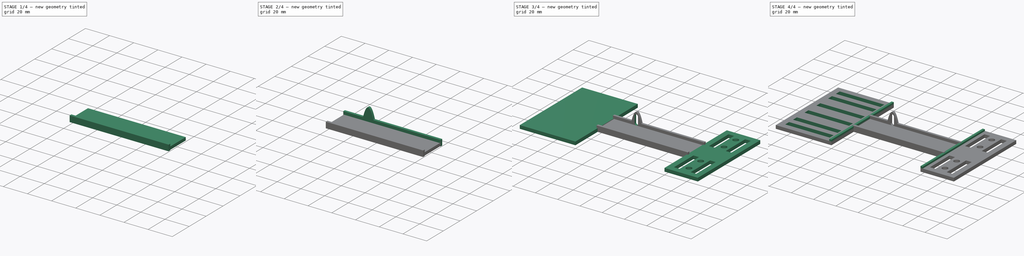
[diagram: build sequence overview — one tinted view per stage of 4, left to right]
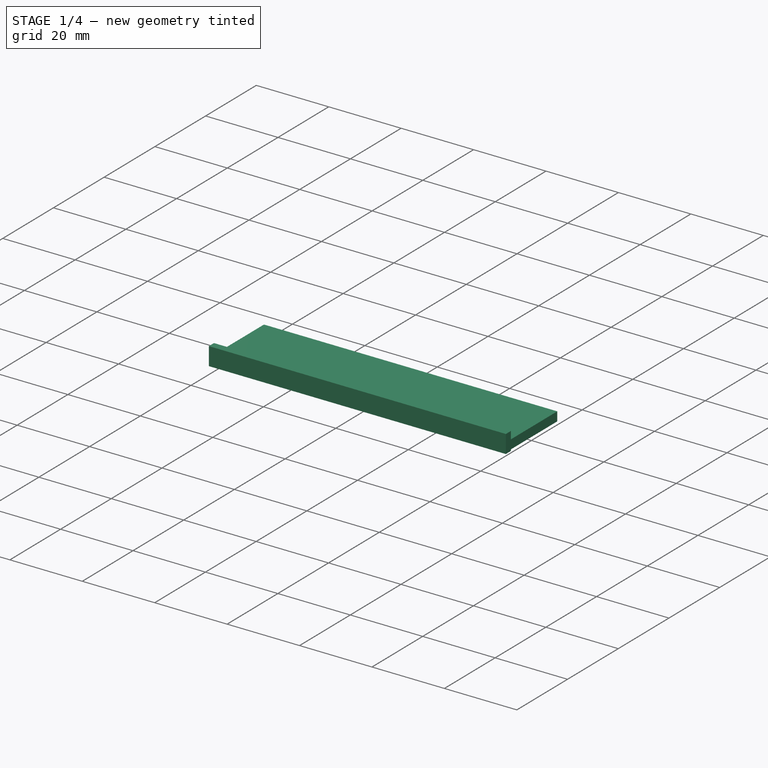
[diagram: stage 1 of 4 — iso view after this stage's code; geometry added in this stage tinted green]
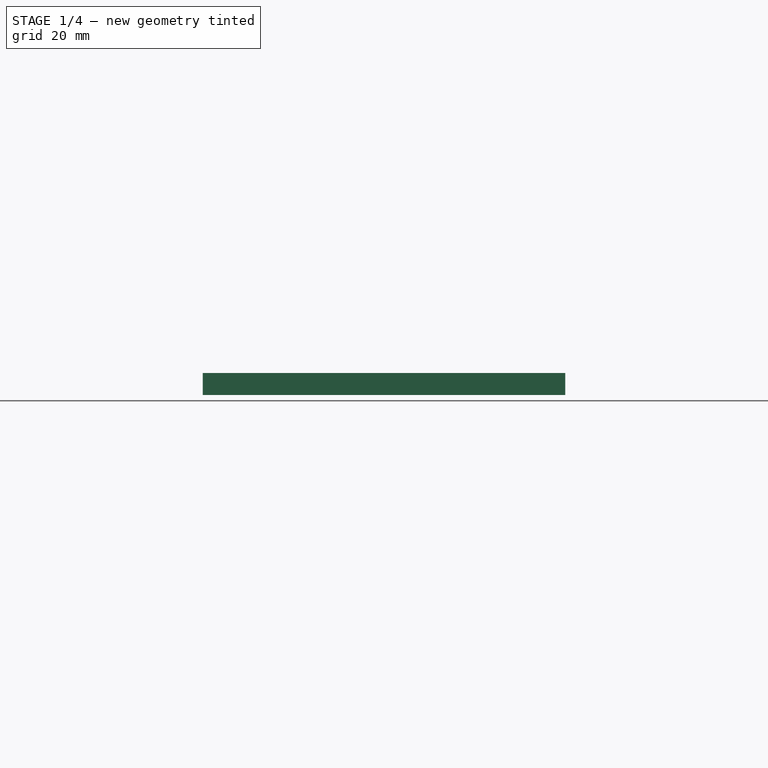
[diagram: stage 1 of 4 — front view after this stage's code; geometry added in this stage tinted green]
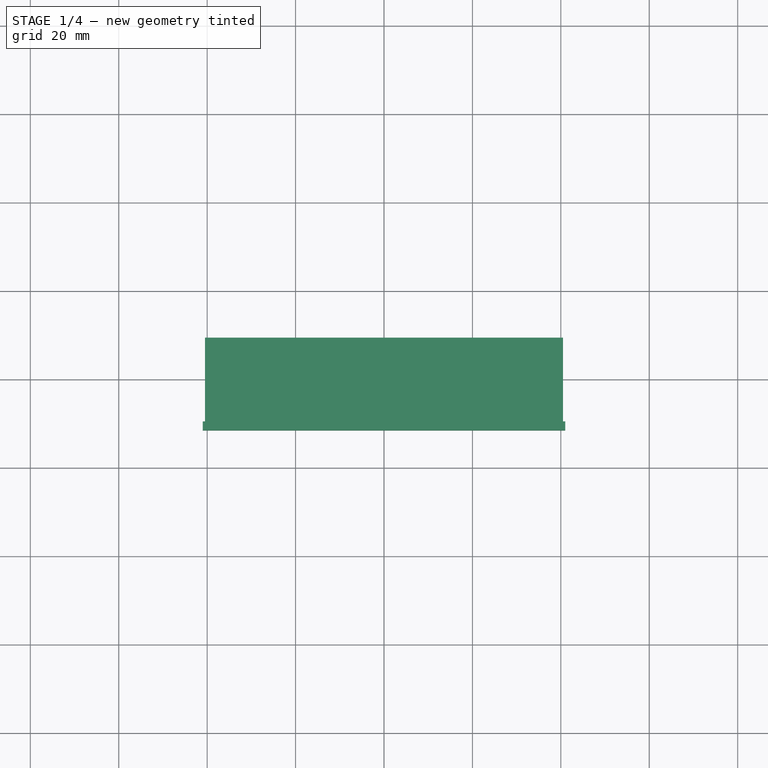
[diagram: stage 1 of 4 — top view after this stage's code; geometry added in this stage tinted green]
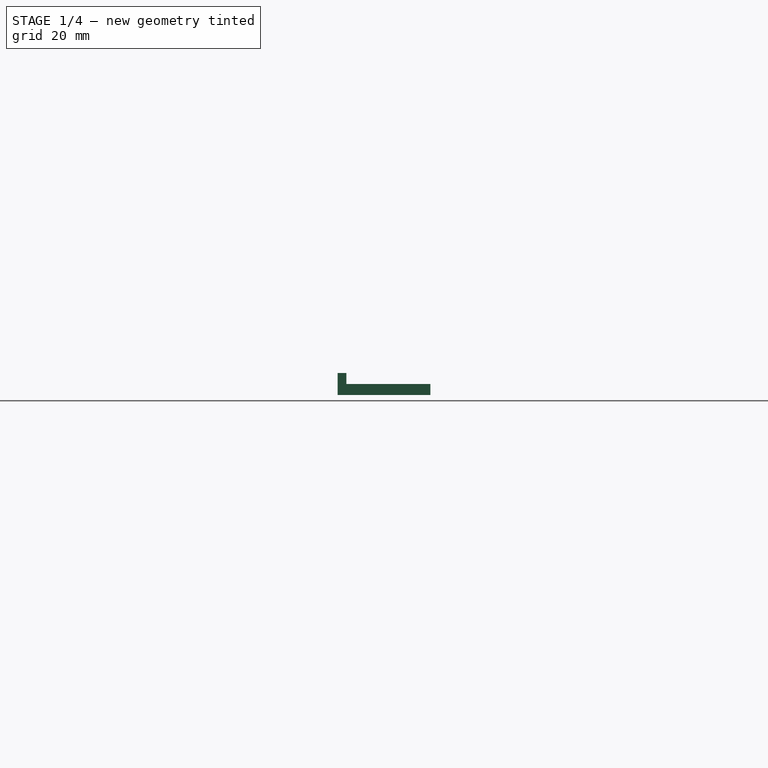
[diagram: stage 1 of 4 — right view after this stage's code; geometry added in this stage tinted green]
FCSTD DOCUMENT  (FreeCAD 0.19RUnknown)
Label: bar-car-rect
License: All rights reserved
LicenseURL: http://en.wikipedia.org/wiki/All_rights_reserved
objects: Sketcher::SketchObject×9, PartDesign::Pad×6, PartDesign::Pocket×3, PartDesign::Body×1
note: 28 computed .brp shape members not serialized (recipe doc carries the construction recipe); baked Part::Feature solids carry a one-line shape summary decoded from their .brp

FEATURE [Sketcher::SketchObject] Sketch
  FullyConstrained = false
  MapMode = 5
  Support = -> [XY_Plane]
  sketch-geometry (4):
    g0: LineSegment StartX=-40.5 StartY=9.5 StartZ=0 EndX=40.5 EndY=9.5 EndZ=0
    g1: LineSegment StartX=40.5 StartY=9.5 StartZ=0 EndX=40.5 EndY=-9.5 EndZ=0
    g2: LineSegment StartX=40.5 StartY=-9.5 StartZ=0 EndX=-40.5 EndY=-9.5 EndZ=0
    g3: LineSegment StartX=-40.5 StartY=-9.5 StartZ=0 EndX=-40.5 EndY=9.5 EndZ=0
  constraints (8):
    c: Coincident(g0,g1)
    c: Coincident(g1,g2)
    c: Coincident(g2,g3)
    c: Coincident(g3,g0)
    c: Horizontal(g0)
    c: Horizontal(g2)
    c: Vertical(g1)
    c: Vertical(g3)
FEATURE [PartDesign::Pad] Pad
  Direction = (1,1,1)
  Length = 2.5
  Length2 = 100
  Profile = -> Sketch
  Type = 0
FEATURE [Sketcher::SketchObject] Sketch001
  FullyConstrained = false
  MapMode = 5
  Placement = pos=(0,-9.5,0) rot=(1,0,0;1.5708rad)
  Support = -> [Pad]
  sketch-geometry (4):
    g0: LineSegment StartX=-41 StartY=5 StartZ=0 EndX=41 EndY=5 EndZ=0
    g1: LineSegment StartX=41 StartY=5 StartZ=0 EndX=41 EndY=0 EndZ=0
    g2: LineSegment StartX=41 StartY=0 StartZ=0 EndX=-41 EndY=0 EndZ=0
    g3: LineSegment StartX=-41 StartY=0 StartZ=0 EndX=-41 EndY=5 EndZ=0
  constraints (9):
    c: Coincident(g0,g1)
    c: Coincident(g1,g2)
    c: Coincident(g2,g3)
    c: Coincident(g3,g0)
    c: Horizontal(g0)
    c: Horizontal(g2)
    c: Vertical(g1)
    c: Vertical(g3)
    c: PointOnObject(g1,g-1)
FEATURE [PartDesign::Pad] Pad001
  BaseFeature = -> Pad
  Direction = (1,1,1)
  Length = 2
  Length2 = 100
  Profile = -> Sketch001
  Type = 0
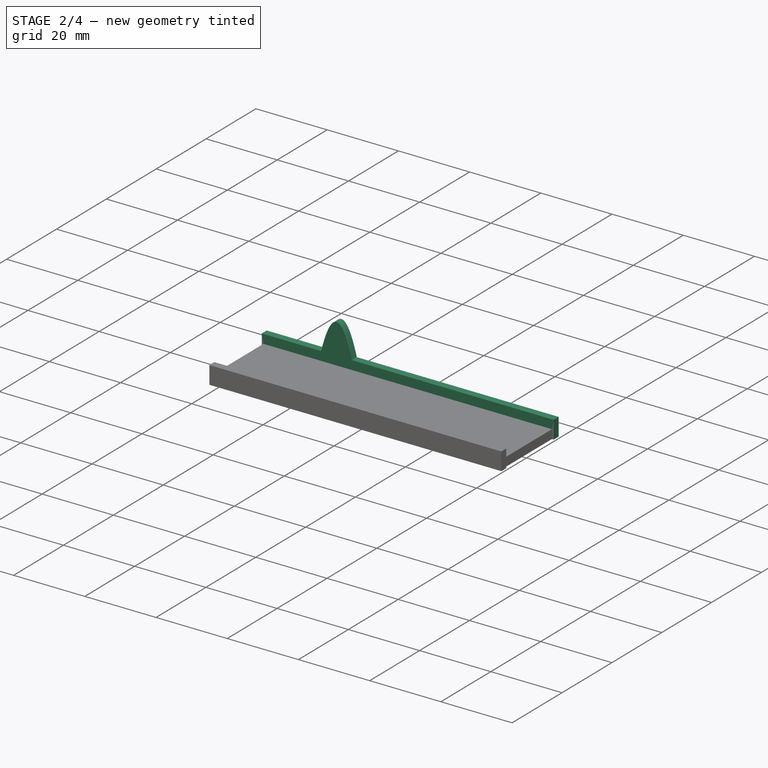
[diagram: stage 2 of 4 — iso view after this stage's code; geometry added in this stage tinted green]
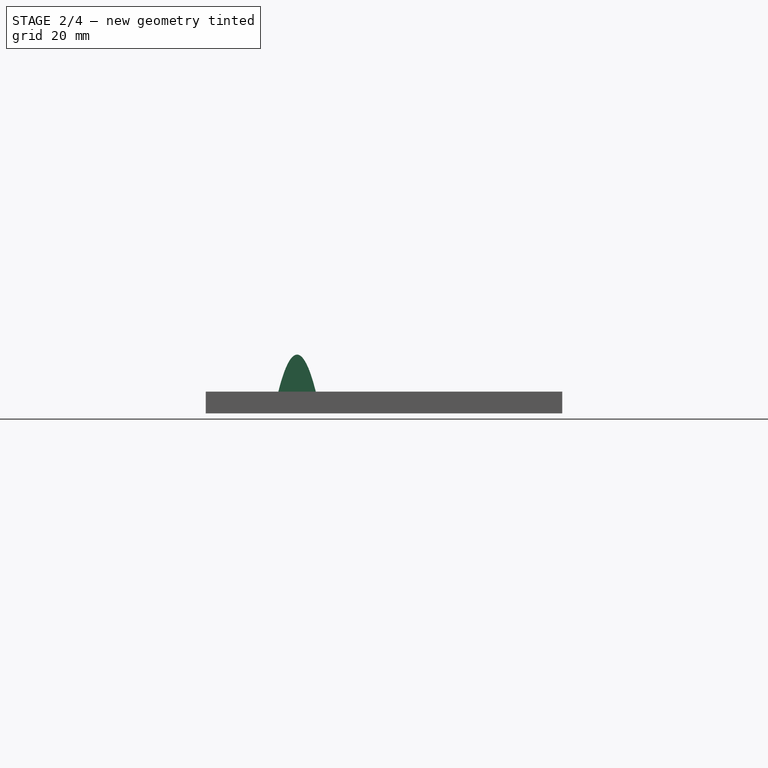
[diagram: stage 2 of 4 — front view after this stage's code; geometry added in this stage tinted green]
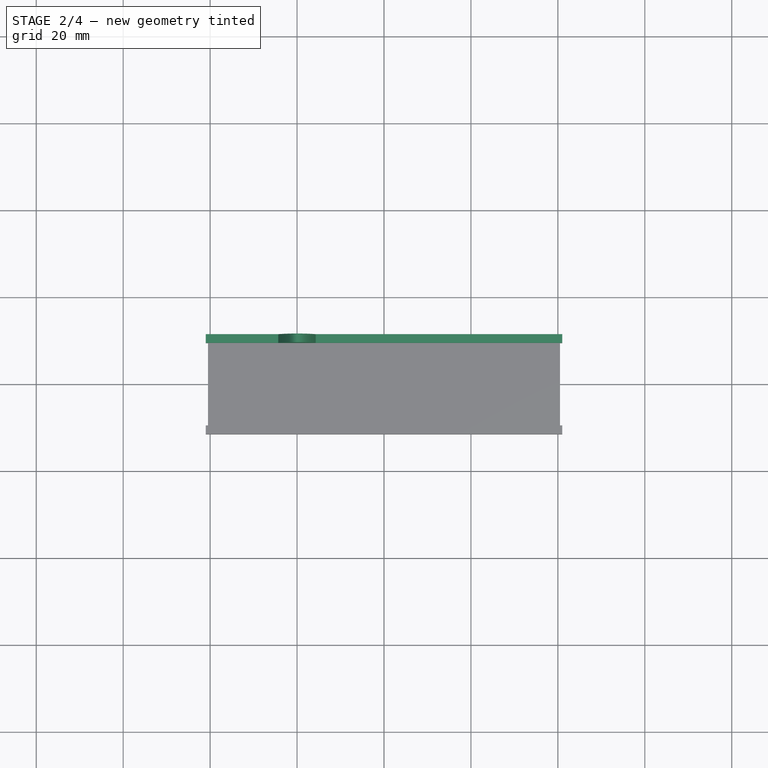
[diagram: stage 2 of 4 — top view after this stage's code; geometry added in this stage tinted green]
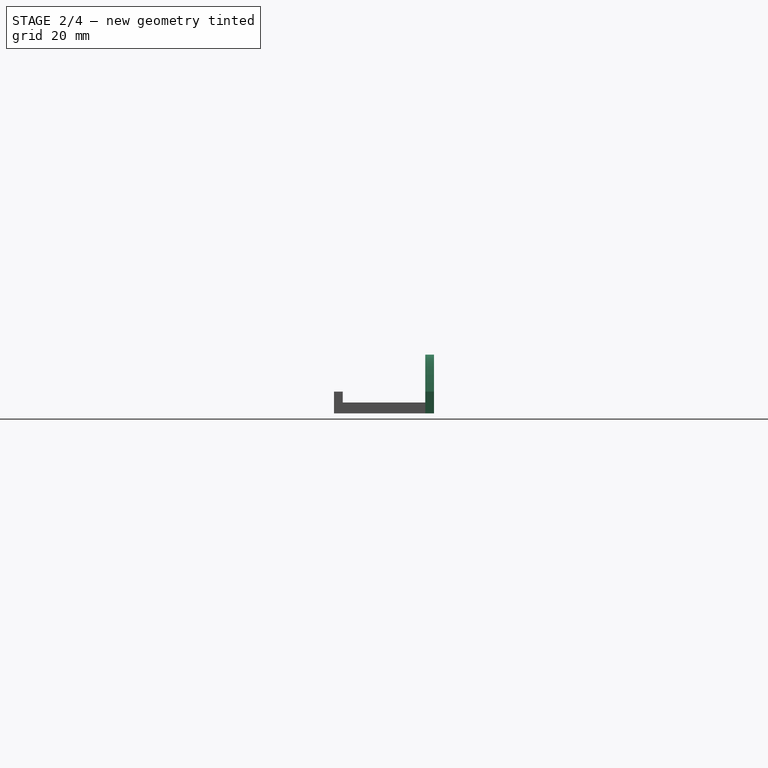
[diagram: stage 2 of 4 — right view after this stage's code; geometry added in this stage tinted green]
FEATURE [Sketcher::SketchObject] Sketch002
  FullyConstrained = false
  MapMode = 5
  Placement = pos=(0,9.5,0) rot=(0,0.707107,0.707107;3.14159rad)
  Support = -> [Pad001]
  sketch-geometry (4):
    g0: LineSegment StartX=41 StartY=0 StartZ=0 EndX=-41 EndY=0 EndZ=0
    g1: LineSegment StartX=-41 StartY=0 StartZ=0 EndX=-41 EndY=5 EndZ=0
    g2: LineSegment StartX=-41 StartY=5 StartZ=0 EndX=41 EndY=5 EndZ=0
    g3: LineSegment StartX=41 StartY=5 StartZ=0 EndX=41 EndY=0 EndZ=0
  constraints (9):
    c: Coincident(g0,g1)
    c: Coincident(g1,g2)
    c: Coincident(g2,g3)
    c: Coincident(g3,g0)
    c: Horizontal(g0)
    c: Horizontal(g2)
    c: Vertical(g1)
    c: Vertical(g3)
    c: PointOnObject(g0,g-1)
FEATURE [PartDesign::Pad] Pad002
  BaseFeature = -> Pad001
  Direction = (1,1,1)
  Length = 2
  Length2 = 100
  Profile = -> Sketch002
  Type = 0
FEATURE [Sketcher::SketchObject] Sketch003
  FullyConstrained = false
  MapMode = 5
  Placement = pos=(0,11.5,-4.1e-15) rot=(0,0.707107,0.707107;3.14159rad)
  Support = -> [Pad002]
  sketch-geometry (7):
    g0: Circle CenterX=15 CenterY=2.06384 CenterZ=0 NormalX=0 NormalY=0 NormalZ=1 AngleXU=0 Radius=1
    g1: Circle CenterX=20 CenterY=25 CenterZ=0 NormalX=0 NormalY=0 NormalZ=1 AngleXU=0 Radius=1
    g2: Circle CenterX=25 CenterY=2.06384 CenterZ=0 NormalX=0 NormalY=0 NormalZ=1 AngleXU=0 Radius=1
    g3: BSplineCurve PolesCount=3 KnotsCount=2 Degree=2 IsPeriodic=0
    g4: GeomPoint X=15 Y=2.06384 Z=0
    g5: GeomPoint X=25 Y=2.06384 Z=0
    g6: LineSegment StartX=15 StartY=2.06384 StartZ=0 EndX=25 EndY=2.06384 EndZ=0
  constraints (11):
    c: Weight(g0) = 1
    c: Equal(g0,g1)
    c: Equal(g0,g2)
    c: InternalAlignment(g0,g3)
    c: InternalAlignment(g1,g3)
    c: InternalAlignment(g2,g3)
    c: InternalAlignment(g4,g3)
    c: InternalAlignment(g5,g3)
    c: Coincident(g6,g3)
    c: Coincident(g6,g3)
    c: Horizontal(g6)
FEATURE [PartDesign::Pad] Pad003
  BaseFeature = -> Pad002
  Direction = (1,1,1)
  Length = 2
  Length2 = 100
  Profile = -> Sketch003
  Reversed = true
  Type = 0
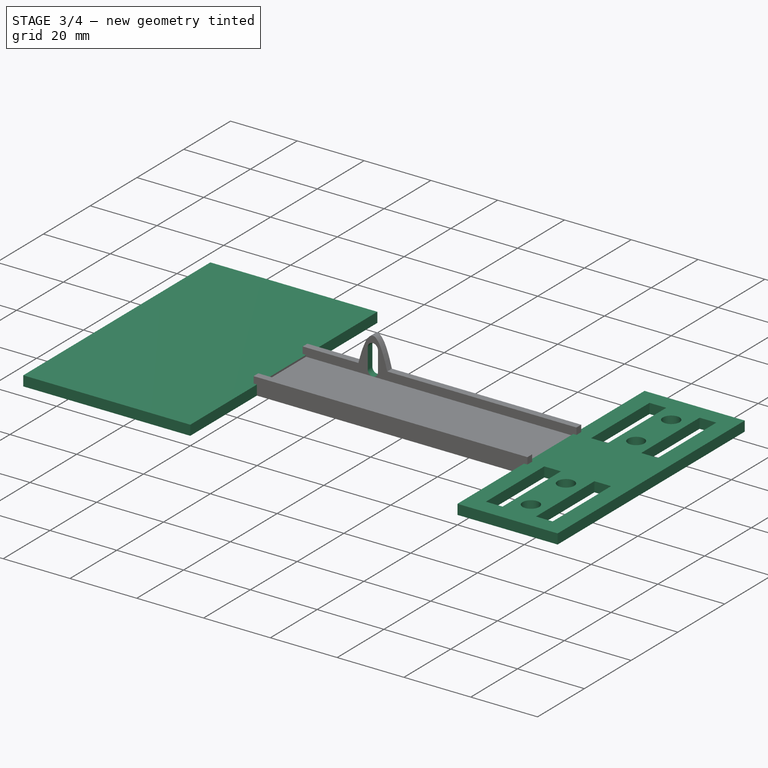
[diagram: stage 3 of 4 — iso view after this stage's code; geometry added in this stage tinted green]
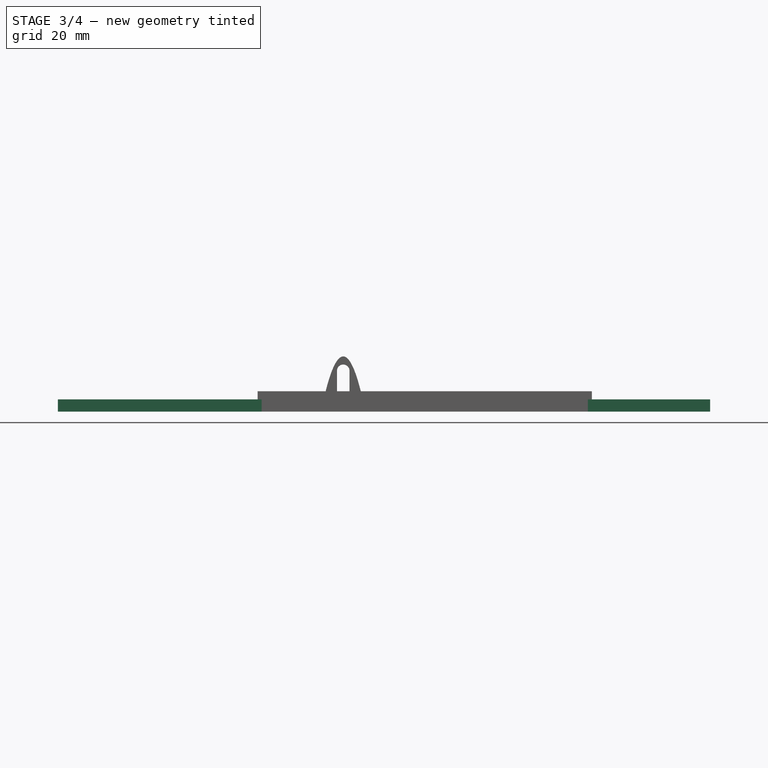
[diagram: stage 3 of 4 — front view after this stage's code; geometry added in this stage tinted green]
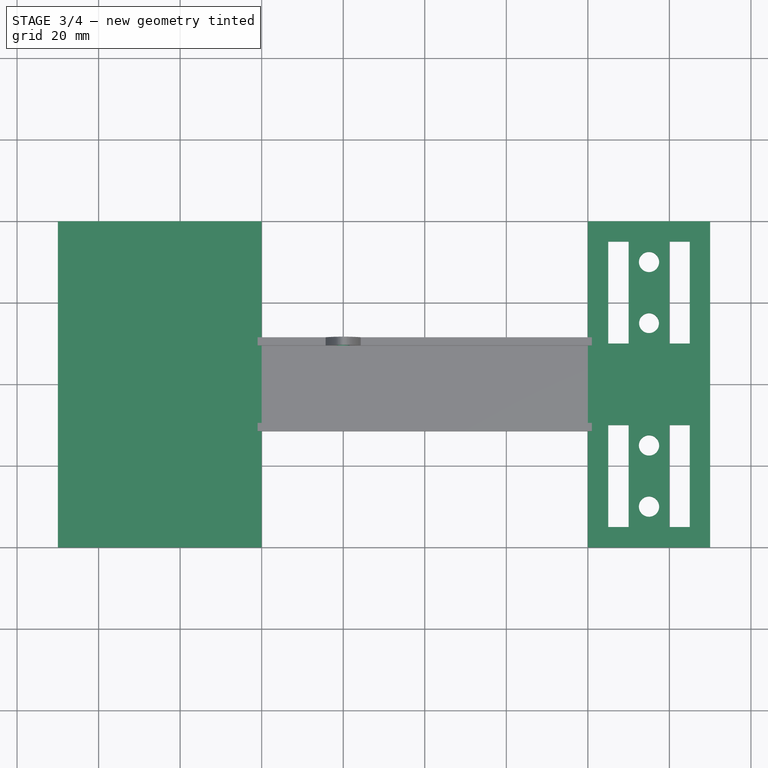
[diagram: stage 3 of 4 — top view after this stage's code; geometry added in this stage tinted green]
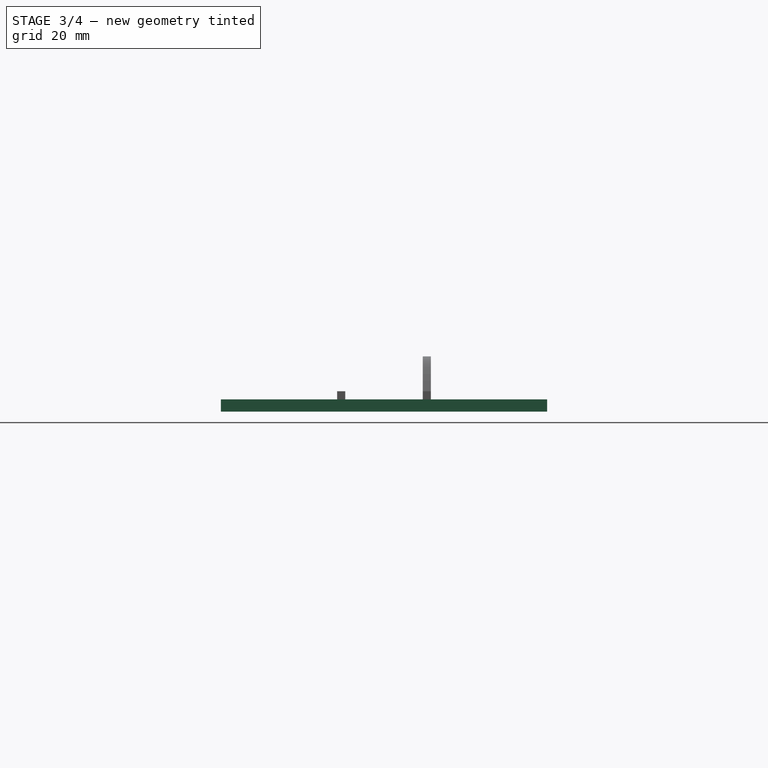
[diagram: stage 3 of 4 — right view after this stage's code; geometry added in this stage tinted green]
FEATURE [Sketcher::SketchObject] Sketch004
  FullyConstrained = false
  MapMode = 5
  Placement = pos=(0,11.5,-3.6e-15) rot=(0,0.707107,0.707107;3.14159rad)
  Support = -> [Pad003]
  sketch-geometry (4):
    g0: ArcOfCircle CenterX=20 CenterY=10 CenterZ=0 NormalX=0 NormalY=0 NormalZ=1 AngleXU=0 Radius=1.53431 StartAngle=1e-16 EndAngle=3.14159
    g1: ArcOfCircle CenterX=20 CenterY=4 CenterZ=0 NormalX=0 NormalY=0 NormalZ=1 AngleXU=0 Radius=1.53431 StartAngle=3.14159 EndAngle=6.28319
    g2: LineSegment StartX=18.4657 StartY=10 StartZ=0 EndX=18.4657 EndY=4 EndZ=0
    g3: LineSegment StartX=21.5343 StartY=10 StartZ=0 EndX=21.5343 EndY=4 EndZ=0
  constraints (6):
    c: Tangent(g0,g3) = 1.5708
    c: Tangent(g0,g2) = -1.5708
    c: Tangent(g2,g1) = -1.5708
    c: Tangent(g3,g1) = 1.5708
    c: Vertical(g2)
    c: Equal(g0,g1)
FEATURE [PartDesign::Pocket] Pocket
  BaseFeature = -> Pad003
  Length = 2
  Length2 = 100
  Profile = -> Sketch004
  Type = 0
FEATURE [Sketcher::SketchObject] Sketch005
  FullyConstrained = false
  MapMode = 5
  Placement = pos=(0,0,0) rot=(1,0,0;3.14159rad)
  Support = -> [Pocket]
  sketch-geometry (8):
    g0: LineSegment StartX=-40 StartY=40 StartZ=0 EndX=-90 EndY=40 EndZ=0
    g1: LineSegment StartX=-90 StartY=40 StartZ=0 EndX=-90 EndY=-40 EndZ=0
    g2: LineSegment StartX=-90 StartY=-40 StartZ=0 EndX=-40 EndY=-40 EndZ=0
    g3: LineSegment StartX=-40 StartY=-40 StartZ=0 EndX=-40 EndY=40 EndZ=0
    g4: LineSegment StartX=40 StartY=40 StartZ=0 EndX=70 EndY=40 EndZ=0
    g5: LineSegment StartX=70 StartY=40 StartZ=0 EndX=70 EndY=-40 EndZ=0
    g6: LineSegment StartX=70 StartY=-40 StartZ=0 EndX=40 EndY=-40 EndZ=0
    g7: LineSegment StartX=40 StartY=-40 StartZ=0 EndX=40 EndY=40 EndZ=0
  constraints (16):
    c: Coincident(g0,g1)
    c: Coincident(g1,g2)
    c: Coincident(g2,g3)
    c: Coincident(g3,g0)
    c: Horizontal(g0)
    c: Horizontal(g2)
    c: Vertical(g1)
    c: Vertical(g3)
    c: Coincident(g4,g5)
    c: Coincident(g5,g6)
    c: Coincident(g6,g7)
    c: Coincident(g7,g4)
    c: Horizontal(g4)
    c: Horizontal(g6)
    c: Vertical(g5)
    c: Vertical(g7)
FEATURE [PartDesign::Pad] Pad004
  BaseFeature = -> Pocket
  Direction = (1,1,1)
  Length = 3
  Length2 = 100
  Profile = -> Sketch005
  Reversed = true
  Type = 0
FEATURE [Sketcher::SketchObject] Sketch006
  FullyConstrained = false
  MapMode = 5
  Placement = pos=(0,0,0) rot=(1,0,0;3.14159rad)
  Support = -> [Pad004]
  sketch-geometry (20):
    g0: Circle CenterX=55 CenterY=-30 CenterZ=0 NormalX=0 NormalY=0 NormalZ=1 AngleXU=0 Radius=2.48011
    g1: Circle CenterX=55 CenterY=-15 CenterZ=0 NormalX=0 NormalY=0 NormalZ=1 AngleXU=0 Radius=2.4386
    g2: Circle CenterX=55 CenterY=15 CenterZ=0 NormalX=0 NormalY=0 NormalZ=1 AngleXU=0 Radius=2.48946
    g3: Circle CenterX=55 CenterY=30 CenterZ=0 NormalX=0 NormalY=0 NormalZ=1 AngleXU=0 Radius=2.48946
    g4: LineSegment StartX=60 StartY=35 StartZ=0 EndX=65 EndY=35 EndZ=0
    g5: LineSegment StartX=65 StartY=35 StartZ=0 EndX=65 EndY=10 EndZ=0
    g6: LineSegment StartX=65 StartY=10 StartZ=0 EndX=60 EndY=10 EndZ=0
    g7: LineSegment StartX=60 StartY=10 StartZ=0 EndX=60 EndY=35 EndZ=0
    g8: LineSegment StartX=60 StartY=-10 StartZ=0 EndX=65 EndY=-10 EndZ=0
    g9: LineSegment StartX=65 StartY=-10 StartZ=0 EndX=65 EndY=-35 EndZ=0
    g10: LineSegment StartX=65 StartY=-35 StartZ=0 EndX=60 EndY=-35 EndZ=0
    g11: LineSegment StartX=60 StartY=-35 StartZ=0 EndX=60 EndY=-10 EndZ=0
    g12: LineSegment StartX=45 StartY=-10 StartZ=0 EndX=50 EndY=-10 EndZ=0
    g13: LineSegment StartX=50 StartY=-10 StartZ=0 EndX=50 EndY=-35 EndZ=0
    g14: LineSegment StartX=50 StartY=-35 StartZ=0 EndX=45 EndY=-35 EndZ=0
    g15: LineSegment StartX=45 StartY=-35 StartZ=0 EndX=45 EndY=-10 EndZ=0
    g16: LineSegment StartX=45 StartY=35 StartZ=0 EndX=50 EndY=35 EndZ=0
    g17: LineSegment StartX=50 StartY=35 StartZ=0 EndX=50 EndY=10 EndZ=0
    g18: LineSegment StartX=50 StartY=10 StartZ=0 EndX=45 EndY=10 EndZ=0
    g19: LineSegment StartX=45 StartY=10 StartZ=0 EndX=45 EndY=35 EndZ=0
  constraints (32):
    c: Coincident(g4,g5)
    c: Coincident(g5,g6)
    c: Coincident(g6,g7)
    c: Coincident(g7,g4)
    c: Horizontal(g4)
    c: Horizontal(g6)
    c: Vertical(g5)
    c: Vertical(g7)
    c: Coincident(g8,g9)
    c: Coincident(g9,g10)
    c: Coincident(g10,g11)
    c: Coincident(g11,g8)
    c: Horizontal(g8)
    c: Horizontal(g10)
    c: Vertical(g9)
    c: Vertical(g11)
    c: Coincident(g12,g13)
    c: Coincident(g13,g14)
    c: Coincident(g14,g15)
    c: Coincident(g15,g12)
    c: Horizontal(g12)
    c: Horizontal(g14)
    c: Vertical(g13)
    c: Vertical(g15)
    c: Coincident(g16,g17)
    c: Coincident(g17,g18)
    c: Coincident(g18,g19)
    c: Coincident(g19,g16)
    c: Horizontal(g16)
    c: Horizontal(g18)
    c: Vertical(g17)
    c: Vertical(g19)
FEATURE [PartDesign::Pocket] Pocket001
  BaseFeature = -> Pad004
  Length = 3
  Length2 = 100
  Profile = -> Sketch006
  Type = 0
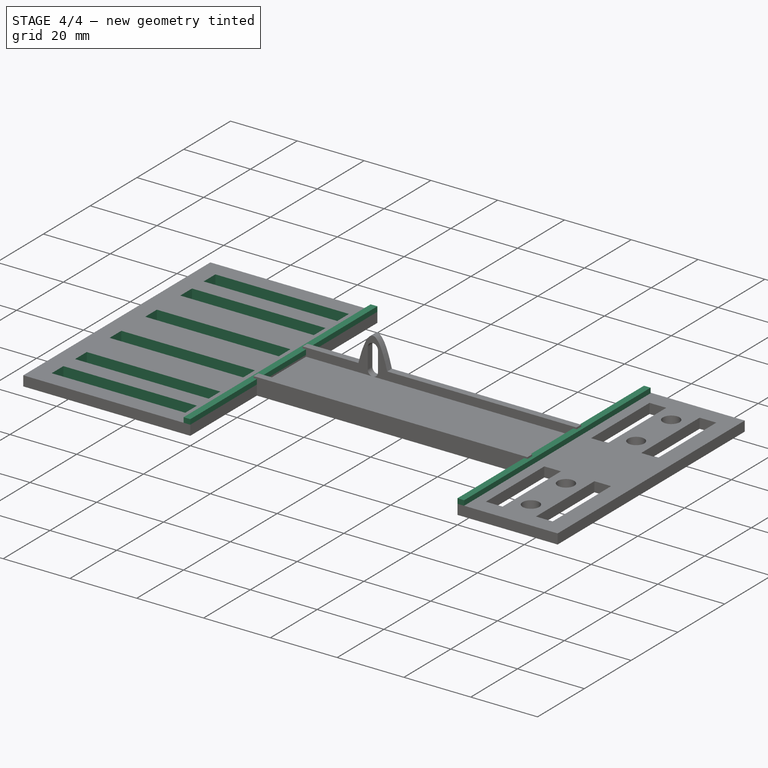
[diagram: stage 4 of 4 — iso view after this stage's code; geometry added in this stage tinted green]
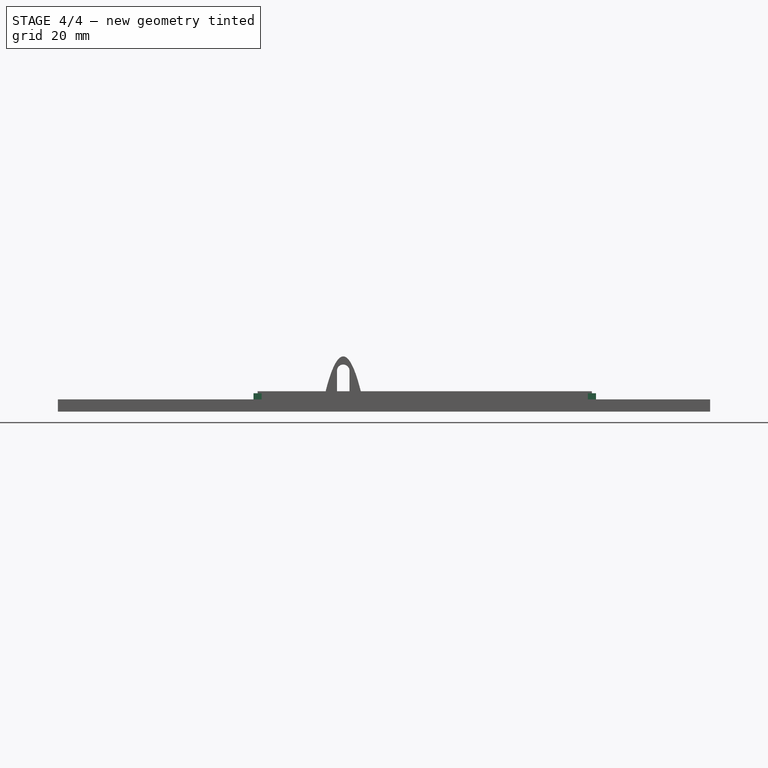
[diagram: stage 4 of 4 — front view after this stage's code; geometry added in this stage tinted green]
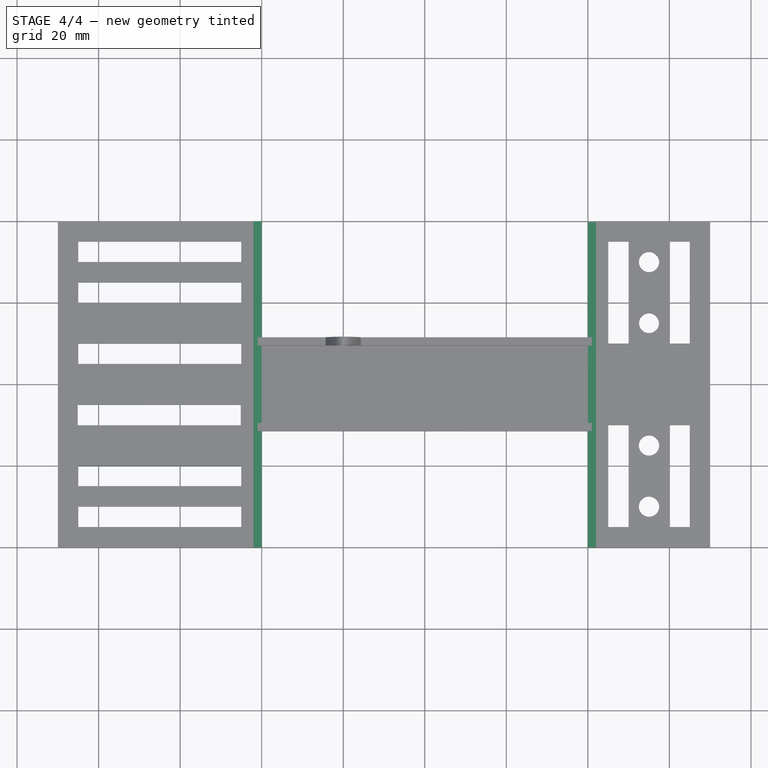
[diagram: stage 4 of 4 — top view after this stage's code; geometry added in this stage tinted green]
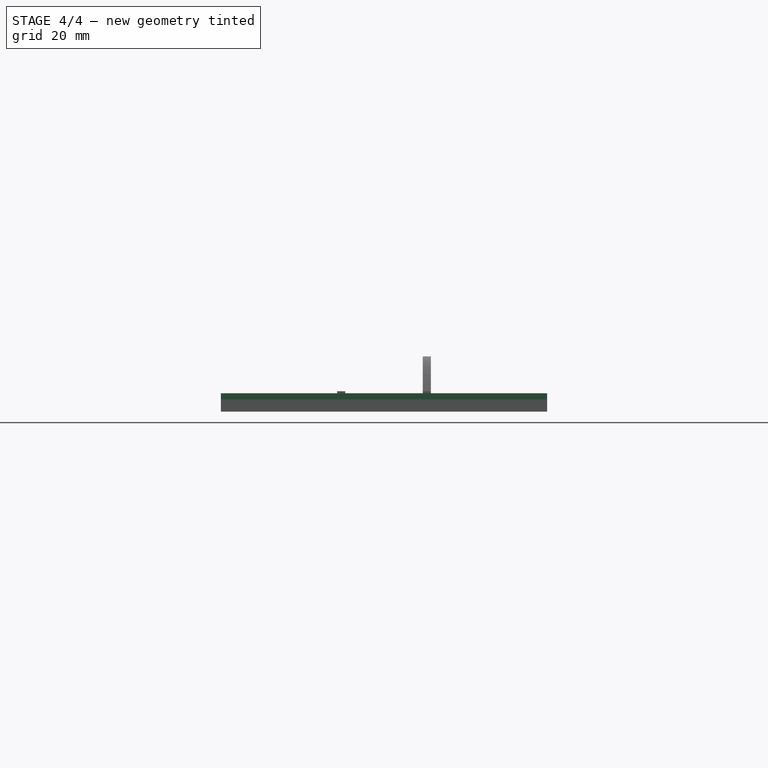
[diagram: stage 4 of 4 — right view after this stage's code; geometry added in this stage tinted green]
FEATURE [Sketcher::SketchObject] Sketch007
  FullyConstrained = false
  MapMode = 5
  Placement = pos=(0,0,0) rot=(1,0,0;3.14159rad)
  Support = -> [Pocket001]
  sketch-geometry (24):
    g0: LineSegment StartX=-85 StartY=35 StartZ=0 EndX=-45 EndY=35 EndZ=0
    g1: LineSegment StartX=-45 StartY=35 StartZ=0 EndX=-45 EndY=30 EndZ=0
    g2: LineSegment StartX=-45 StartY=30 StartZ=0 EndX=-85 EndY=30 EndZ=0
    g3: LineSegment StartX=-85 StartY=30 StartZ=0 EndX=-85 EndY=35 EndZ=0
    g4: LineSegment StartX=-85 StartY=25 StartZ=0 EndX=-45 EndY=25 EndZ=0
    g5: LineSegment StartX=-45 StartY=25 StartZ=0 EndX=-45 EndY=20 EndZ=0
    g6: LineSegment StartX=-45 StartY=20 StartZ=0 EndX=-85 EndY=20 EndZ=0
    g7: LineSegment StartX=-85 StartY=20 StartZ=0 EndX=-85 EndY=25 EndZ=0
    g8: LineSegment StartX=-85.1238 StartY=10.0464 StartZ=0 EndX=-45.1238 EndY=10.0464 EndZ=0
    g9: LineSegment StartX=-45.1238 StartY=10.0464 StartZ=0 EndX=-45.1238 EndY=5.04644 EndZ=0
    g10: LineSegment StartX=-45.1238 StartY=5.04644 StartZ=0 EndX=-85.1238 EndY=5.04644 EndZ=0
    g11: LineSegment StartX=-85.1238 StartY=5.04644 StartZ=0 EndX=-85.1238 EndY=10.0464 EndZ=0
    g12: LineSegment StartX=-85 StartY=-5 StartZ=0 EndX=-45 EndY=-5 EndZ=0
    g13: LineSegment StartX=-45 StartY=-5 StartZ=0 EndX=-45 EndY=-10 EndZ=0
    g14: LineSegment StartX=-45 StartY=-10 StartZ=0 EndX=-85 EndY=-10 EndZ=0
    g15: LineSegment StartX=-85 StartY=-10 StartZ=0 EndX=-85 EndY=-5 EndZ=0
    g16: LineSegment StartX=-85 StartY=-20 StartZ=0 EndX=-45 EndY=-20 EndZ=0
    g17: LineSegment StartX=-45 StartY=-20 StartZ=0 EndX=-45 EndY=-25 EndZ=0
    g18: LineSegment StartX=-45 StartY=-25 StartZ=0 EndX=-85 EndY=-25 EndZ=0
    g19: LineSegment StartX=-85 StartY=-25 StartZ=0 EndX=-85 EndY=-20 EndZ=0
    g20: LineSegment StartX=-85 StartY=-30 StartZ=0 EndX=-45 EndY=-30 EndZ=0
    g21: LineSegment StartX=-45 StartY=-30 StartZ=0 EndX=-45 EndY=-35 EndZ=0
    g22: LineSegment StartX=-45 StartY=-35 StartZ=0 EndX=-85 EndY=-35 EndZ=0
    g23: LineSegment StartX=-85 StartY=-35 StartZ=0 EndX=-85 EndY=-30 EndZ=0
  constraints (48):
    c: Coincident(g0,g1)
    c: Coincident(g1,g2)
    c: Coincident(g2,g3)
    c: Coincident(g3,g0)
    c: Horizontal(g0)
    c: Horizontal(g2)
    c: Vertical(g1)
    c: Vertical(g3)
    c: Coincident(g4,g5)
    c: Coincident(g5,g6)
    c: Coincident(g6,g7)
    c: Coincident(g7,g4)
    c: Horizontal(g4)
    c: Horizontal(g6)
    c: Vertical(g5)
    c: Vertical(g7)
    c: Coincident(g8,g9)
    c: Coincident(g9,g10)
    c: Coincident(g10,g11)
    c: Coincident(g11,g8)
    c: Horizontal(g8)
    c: Horizontal(g10)
    c: Vertical(g9)
    c: Vertical(g11)
    c: Coincident(g12,g13)
    c: Coincident(g13,g14)
    c: Coincident(g14,g15)
    c: Coincident(g15,g12)
    c: Horizontal(g12)
    c: Horizontal(g14)
    c: Vertical(g13)
    c: Vertical(g15)
    c: Coincident(g16,g17)
    c: Coincident(g17,g18)
    c: Coincident(g18,g19)
    c: Coincident(g19,g16)
    c: Horizontal(g16)
    c: Horizontal(g18)
    c: Vertical(g17)
    c: Vertical(g19)
    c: Coincident(g20,g21)
    c: Coincident(g21,g22)
    c: Coincident(g22,g23)
    c: Coincident(g23,g20)
    c: Horizontal(g20)
    c: Horizontal(g22)
    c: Vertical(g21)
    c: Vertical(g23)
FEATURE [PartDesign::Pocket] Pocket002
  BaseFeature = -> Pocket001
  Length = 5
  Length2 = 100
  Profile = -> Sketch007
  Type = 0
FEATURE [Sketcher::SketchObject] Sketch008
  FullyConstrained = false
  MapMode = 5
  Placement = pos=(0,0,3) rot=(0,0,1;0rad)
  Support = -> [Pocket002]
  sketch-geometry (8):
    g0: LineSegment StartX=40 StartY=39.7415 StartZ=0 EndX=42 EndY=39.7415 EndZ=0
    g1: LineSegment StartX=42 StartY=39.7415 StartZ=0 EndX=42 EndY=-40 EndZ=0
    g2: LineSegment StartX=42 StartY=-40 StartZ=0 EndX=40 EndY=-40 EndZ=0
    g3: LineSegment StartX=40 StartY=-40 StartZ=0 EndX=40 EndY=39.7415 EndZ=0
    g4: LineSegment StartX=-42 StartY=-40 StartZ=0 EndX=-40 EndY=-40 EndZ=0
    g5: LineSegment StartX=-40 StartY=-40 StartZ=0 EndX=-40 EndY=40 EndZ=0
    g6: LineSegment StartX=-40 StartY=40 StartZ=0 EndX=-42 EndY=40 EndZ=0
    g7: LineSegment StartX=-42 StartY=40 StartZ=0 EndX=-42 EndY=-40 EndZ=0
  constraints (16):
    c: Coincident(g0,g1)
    c: Coincident(g1,g2)
    c: Coincident(g2,g3)
    c: Coincident(g3,g0)
    c: Horizontal(g0)
    c: Horizontal(g2)
    c: Vertical(g1)
    c: Vertical(g3)
    c: Coincident(g4,g5)
    c: Coincident(g5,g6)
    c: Coincident(g6,g7)
    c: Coincident(g7,g4)
    c: Horizontal(g4)
    c: Horizontal(g6)
    c: Vertical(g5)
    c: Vertical(g7)
FEATURE [PartDesign::Pad] Pad005
  BaseFeature = -> Pocket002
  Direction = (1,1,1)
  Length = 1.5
  Length2 = 100
  Profile = -> Sketch008
  Type = 0
FEATURE [PartDesign::Body] Body
  Group = -> [Sketch,Pad,Sketch001,Pad001,Sketch002,Pad002,Sketch003,Pad003,Sketch004,Pocket,Sketch005,Pad004,Sketch006,Pocket001,Sketch007,Pocket002,Sketch008,Pad005]
  Origin = -> Origin
  Tip = -> Pad005
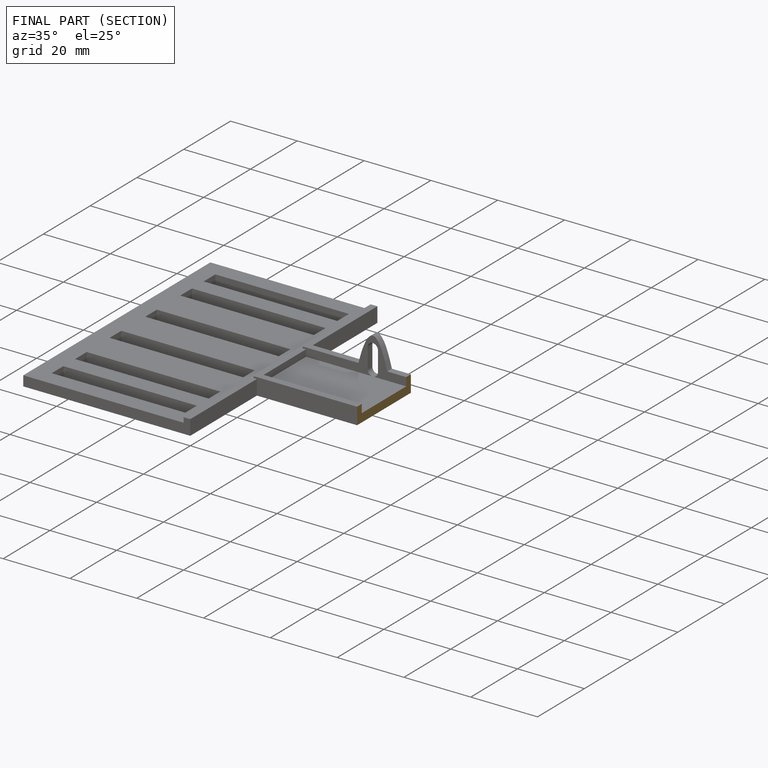
[diagram: finished part — half-section view (interior)]
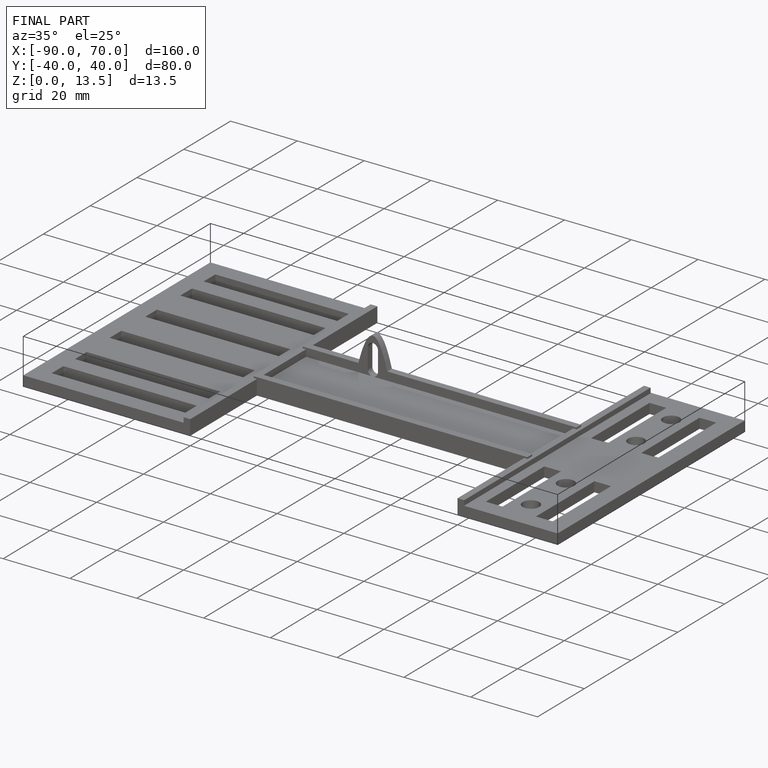
[diagram: finished part — iso view with bounding-box wireframe]
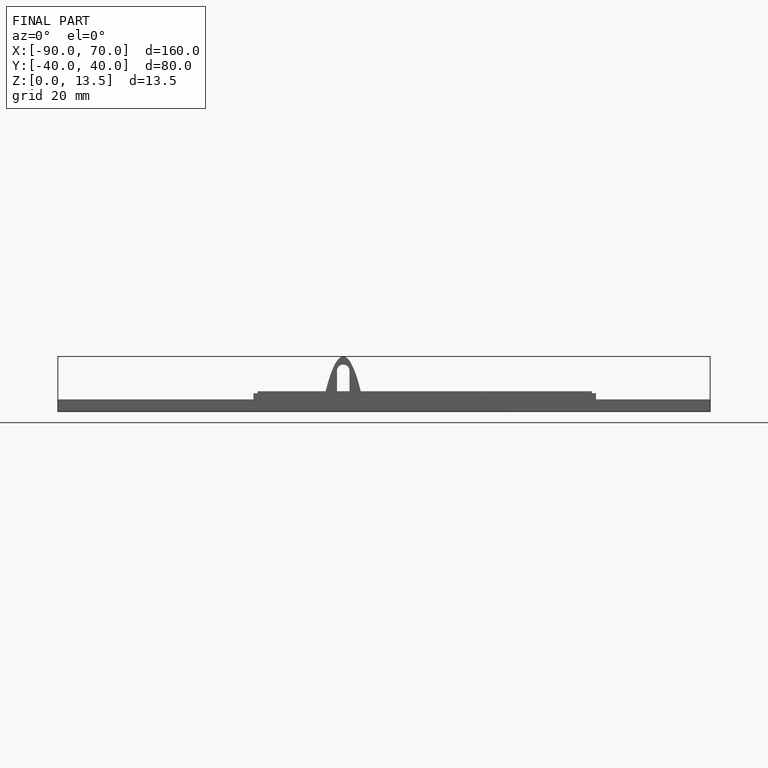
[diagram: finished part — front view with bounding-box wireframe]
